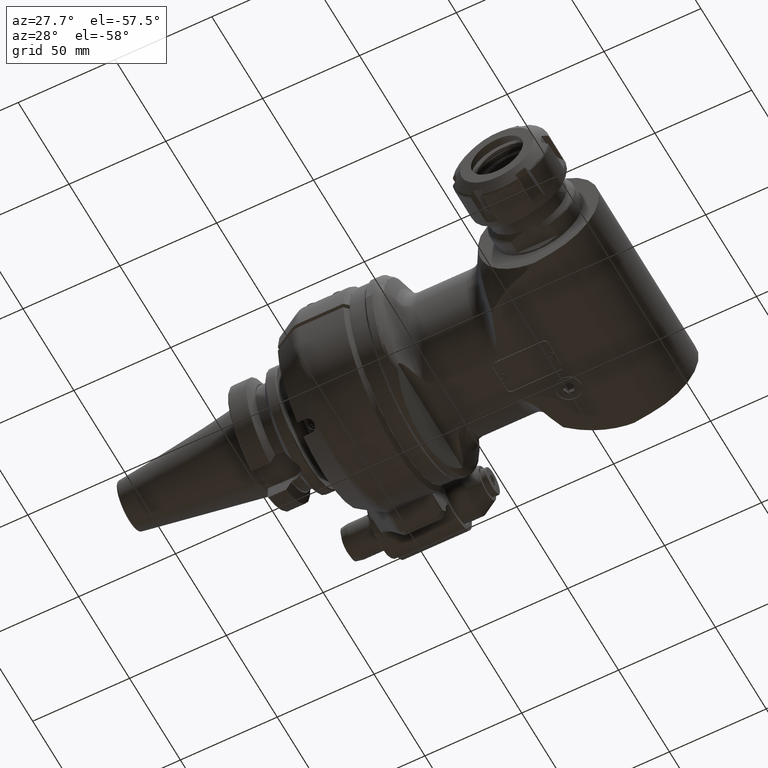
[diagram: clean part render]
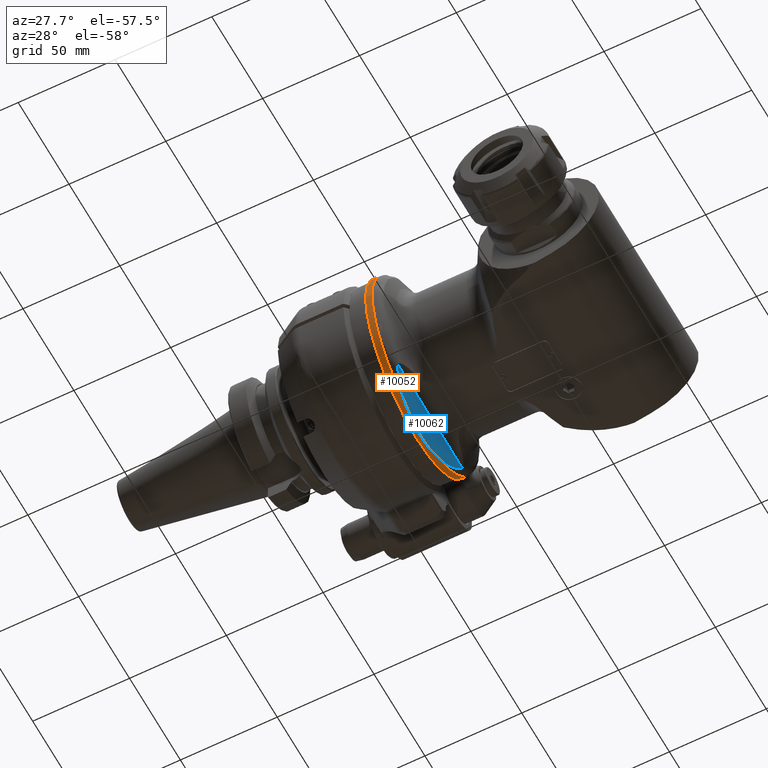
[diagram: same view with the hole feature highlighted: cylindrical wall and planar end face, labeled with their STEP entity ids]
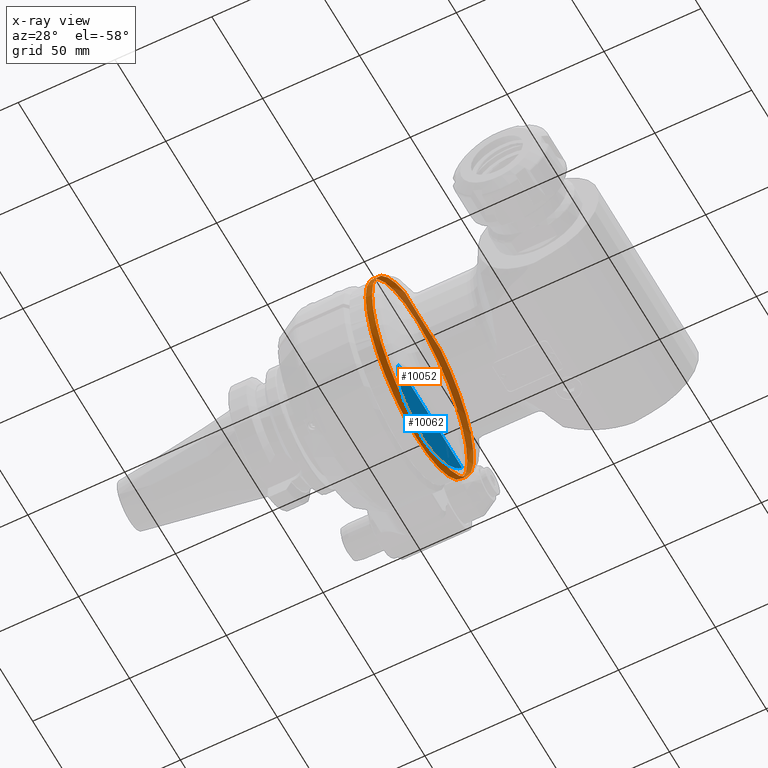
[diagram: x-ray of the same camera — body ghosted, the hole faces saturated]
A machine part, auxiliary view. The highlighted faces form one hole feature of diameter 100 mm: the cylindrical wall (entity #10052, orange) and its adjacent planar end face (entity #10062, blue) — they share a circular edge in the B-rep.
The next image is the same camera in x-ray (body ghosted, the hole faces saturated) — the bore reads through the body.
Wall:
#171=ELLIPSE('',#10689,53.2088886237962,50.);
#172=ELLIPSE('',#10695,53.2088886237962,50.);
#747=LINE('',#19281,#1506);
#1506=VECTOR('',#11784,50.);
#2232=CYLINDRICAL_SURFACE('',#10692,50.);
#2420=FACE_OUTER_BOUND('',#2974,.T.);
#2974=EDGE_LOOP('',(#6998,#6999,#7000,#7001,#7002,#7003,#7004,#7005,#7006));
#3567=CIRCLE('',#10686,50.);
#3568=CIRCLE('',#10687,50.);
#3569=CIRCLE('',#10691,50.);
#3570=CIRCLE('',#10693,50.);
#3571=CIRCLE('',#10694,50.);
#4071=VERTEX_POINT('',#19209);
#4072=VERTEX_POINT('',#19224);
#4073=VERTEX_POINT('',#19226);
#4074=VERTEX_POINT('',#19243);
#4075=VERTEX_POINT('',#19260);
#4076=VERTEX_POINT('',#19277);
#4077=VERTEX_POINT('',#19278);
#5243=EDGE_CURVE('',#4071,#4072,#3567,.T.);
#5244=EDGE_CURVE('',#4072,#4073,#3568,.T.);
#5247=EDGE_CURVE('',#4074,#4071,#171,.T.);
#5249=EDGE_CURVE('',#4075,#4074,#3569,.T.);
#5250=EDGE_CURVE('',#4076,#4077,#3570,.T.);
#5251=EDGE_CURVE('',#4077,#4076,#3571,.T.);
#5252=EDGE_CURVE('',#4077,#4072,#747,.T.);
#5253=EDGE_CURVE('',#4073,#4075,#172,.T.);
#6998=ORIENTED_EDGE('',*,*,#5250,.F.);
#6999=ORIENTED_EDGE('',*,*,#5251,.F.);
#7000=ORIENTED_EDGE('',*,*,#5252,.T.);
#7001=ORIENTED_EDGE('',*,*,#5243,.F.);
#7002=ORIENTED_EDGE('',*,*,#5247,.F.);
#7003=ORIENTED_EDGE('',*,*,#5249,.F.);
#7004=ORIENTED_EDGE('',*,*,#5253,.F.);
#7005=ORIENTED_EDGE('',*,*,#5244,.F.);
#7006=ORIENTED_EDGE('',*,*,#5252,.F.);
#10052=ADVANCED_FACE('',(#2420),#2232,.T.);
#10686=AXIS2_PLACEMENT_3D('',#19225,#11766,#11767);
#10687=AXIS2_PLACEMENT_3D('',#19227,#11768,#11769);
#10689=AXIS2_PLACEMENT_3D('',#19258,#11772,#11773);
#10691=AXIS2_PLACEMENT_3D('',#19275,#11776,#11777);
#10692=AXIS2_PLACEMENT_3D('',#19276,#11778,#11779);
#10693=AXIS2_PLACEMENT_3D('',#19279,#11780,#11781);
#10694=AXIS2_PLACEMENT_3D('',#19280,#11782,#11783);
#10695=AXIS2_PLACEMENT_3D('',#19282,#11785,#11786);
#11766=DIRECTION('center_axis',(1.,0.,0.));
#11767=DIRECTION('ref_axis',(0.,-1.,0.));
#11768=DIRECTION('center_axis',(1.,0.,0.));
#11769=DIRECTION('ref_axis',(0.,-1.,0.));
#11772=DIRECTION('center_axis',(0.939692620785897,0.,0.342020143325699));
#11773=DIRECTION('ref_axis',(0.342020143325699,0.,-0.939692620785897));
#11776=DIRECTION('center_axis',(1.,0.,0.));
#11777=DIRECTION('ref_axis',(0.,1.,0.));
#11778=DIRECTION('center_axis',(-1.,0.,0.));
#11779=DIRECTION('ref_axis',(0.,1.,0.));
#11780=DIRECTION('center_axis',(-1.,0.,0.));
#11781=DIRECTION('ref_axis',(0.,-1.,0.));
#11782=DIRECTION('center_axis',(-1.,0.,0.));
#11783=DIRECTION('ref_axis',(0.,-1.,0.));
#11784=DIRECTION('',(1.,0.,0.));
#11785=DIRECTION('center_axis',(0.939692620785897,0.,-0.342020143325699));
#11786=DIRECTION('ref_axis',(-0.342020143325699,0.,-0.939692620785897));
#19209=CARTESIAN_POINT('',(192.3777456357,-17.40492767463,46.87289720767));
#19224=CARTESIAN_POINT('',(192.377745635738,-50.,6.12323399573677E-15));
#19225=CARTESIAN_POINT('Origin',(192.3777456357,0.,0.));
#19226=CARTESIAN_POINT('',(192.3777456357,-17.40492767463,-46.87289720767));
#19227=CARTESIAN_POINT('Origin',(192.3777456357,0.,0.));
#19243=CARTESIAN_POINT('',(192.3777456357,17.40492767463,46.87289720767));
#19258=CARTESIAN_POINT('Origin',(209.438085013152,0.,0.));
#19260=CARTESIAN_POINT('',(192.3777456357,17.40492767463,-46.87289720767));
#19275=CARTESIAN_POINT('Origin',(192.3777456357,0.,0.));
#19276=CARTESIAN_POINT('Origin',(230.669348,0.,0.));
#19277=CARTESIAN_POINT('',(189.063097,50.,0.));
#19278=CARTESIAN_POINT('',(189.063097,-50.,6.12323399573677E-15));
#19279=CARTESIAN_POINT('Origin',(189.063097,0.,0.));
#19280=CARTESIAN_POINT('Origin',(189.063097,0.,0.));
#19281=CARTESIAN_POINT('',(230.669348,-50.,6.12323399573677E-15));
#19282=CARTESIAN_POINT('Origin',(209.438085013152,0.,0.));
End face:
#172=ELLIPSE('',#10695,53.2088886237962,50.);
#452=B_SPLINE_CURVE_WITH_KNOTS('',3,(#19228,#19229,#19230,#19231,#19232,
#19233,#19234,#19235,#19236,#19237,#19238,#19239,#19240,#19241),
 .UNSPECIFIED.,.F.,.F.,(4,2,2,2,2,2,4),(3.46326501541199,3.65777178500081,
4.02908760830632,4.40040343161182,4.73106063973784,5.06171784786385,5.17704959790373),
 .UNSPECIFIED.);
#454=B_SPLINE_CURVE_WITH_KNOTS('',3,(#19261,#19262,#19263,#19264,#19265,
#19266,#19267,#19268,#19269,#19270,#19271,#19272,#19273,#19274),
 .UNSPECIFIED.,.F.,.F.,(4,2,2,2,2,2,4),(8.52445448942661,8.63978623946649,
8.9704434475925,9.30110065571852,9.67241647902402,10.0437323023295,10.2382390719191),
 .UNSPECIFIED.);
#745=LINE('',#14646,#1504);
#1504=VECTOR('',#11688,63.06014172074);
#2430=FACE_OUTER_BOUND('',#2986,.T.);
#2986=EDGE_LOOP('',(#7043,#7044,#7045,#7046));
#4024=VERTEX_POINT('',#14632);
#4025=VERTEX_POINT('',#14645);
#4073=VERTEX_POINT('',#19226);
#4075=VERTEX_POINT('',#19260);
#5152=EDGE_CURVE('',#4024,#4025,#745,.T.);
#5245=EDGE_CURVE('',#4024,#4073,#452,.T.);
#5248=EDGE_CURVE('',#4075,#4025,#454,.T.);
#5253=EDGE_CURVE('',#4073,#4075,#172,.T.);
#7043=ORIENTED_EDGE('',*,*,#5245,.T.);
#7044=ORIENTED_EDGE('',*,*,#5253,.T.);
#7045=ORIENTED_EDGE('',*,*,#5248,.T.);
#7046=ORIENTED_EDGE('',*,*,#5152,.F.);
#9743=PLANE('',#10716);
#10062=ADVANCED_FACE('',(#2430),#9743,.F.);
#10695=AXIS2_PLACEMENT_3D('',#19282,#11785,#11786);
#10716=AXIS2_PLACEMENT_3D('',#19320,#11833,#11834);
#11688=DIRECTION('',(4.146513465157E-14,1.,1.291278378008E-13));
#11785=DIRECTION('center_axis',(0.939692620785897,0.,-0.342020143325699));
#11786=DIRECTION('ref_axis',(-0.342020143325699,0.,-0.939692620785897));
#11833=DIRECTION('center_axis',(-0.939692620785897,0.,0.342020143325699));
#11834=DIRECTION('ref_axis',(0.342020143325699,0.,0.939692620785897));
#14632=CARTESIAN_POINT('',(196.1051567178,-31.53007086037,-36.63191942671));
#14645=CARTESIAN_POINT('',(196.1051567178,31.53007086037,-36.6319194267));
#14646=CARTESIAN_POINT('',(196.1051567178,-31.53007086037,-36.63191942671));
#19226=CARTESIAN_POINT('',(192.3777456357,-17.40492767463,-46.87289720767));
#19228=CARTESIAN_POINT('Ctrl Pts',(196.105156717802,-31.5300708603091,-36.631919426678));
#19229=CARTESIAN_POINT('Ctrl Pts',(195.891535296273,-31.2144345402221,-37.2188394586415));
#19230=CARTESIAN_POINT('Ctrl Pts',(195.680661636611,-30.8101966263475,-37.7982100769191));
#19231=CARTESIAN_POINT('Ctrl Pts',(195.162728215626,-29.6858895034814,-39.221220455856));
#19232=CARTESIAN_POINT('Ctrl Pts',(194.823715761596,-28.762998259754,-40.1526495182193));
#19233=CARTESIAN_POINT('Ctrl Pts',(194.201366183599,-26.7614724252077,-41.8625409307726));
#19234=CARTESIAN_POINT('Ctrl Pts',(193.918058123146,-25.6827605825767,-42.640923429617));
#19235=CARTESIAN_POINT('Ctrl Pts',(193.46656037435,-23.7507826391231,-43.8814032993668));
#19236=CARTESIAN_POINT('Ctrl Pts',(193.250349658616,-22.7176844987486,-44.4754373586897));
#19237=CARTESIAN_POINT('Ctrl Pts',(192.856173361094,-20.590220041838,-45.5584278354153));
#19238=CARTESIAN_POINT('Ctrl Pts',(192.678012482352,-19.4961631036191,-46.0479208267895));
#19239=CARTESIAN_POINT('Ctrl Pts',(192.477751510717,-18.1296968241042,-46.5981333243543));
#19240=CARTESIAN_POINT('Ctrl Pts',(192.427101632847,-17.7701216774767,-46.737292720101));
#19241=CARTESIAN_POINT('Ctrl Pts',(192.377745635738,-17.4049276746258,-46.8728972076726));
#19260=CARTESIAN_POINT('',(192.3777456357,17.40492767463,-46.87289720767));
#19261=CARTESIAN_POINT('Ctrl Pts',(192.377745635738,17.4049276746258,-46.8728972076726));
#19262=CARTESIAN_POINT('Ctrl Pts',(192.427101632847,17.7701216774767,-46.737292720101));
#19263=CARTESIAN_POINT('Ctrl Pts',(192.477751510717,18.1296968241042,-46.5981333243543));
#19264=CARTESIAN_POINT('Ctrl Pts',(192.678012482352,19.4961631036191,-46.0479208267895));
#19265=CARTESIAN_POINT('Ctrl Pts',(192.856173361094,20.590220041838,-45.5584278354153));
#19266=CARTESIAN_POINT('Ctrl Pts',(193.250349658616,22.7176844987486,-44.4754373586897));
#19267=CARTESIAN_POINT('Ctrl Pts',(193.46656037435,23.7507826391231,-43.8814032993668));
#19268=CARTESIAN_POINT('Ctrl Pts',(193.918058123146,25.6827605825767,-42.640923429617));
#19269=CARTESIAN_POINT('Ctrl Pts',(194.201366183599,26.7614724252077,-41.8625409307726));
#19270=CARTESIAN_POINT('Ctrl Pts',(194.823715761596,28.762998259754,-40.1526495182193));
#19271=CARTESIAN_POINT('Ctrl Pts',(195.162728215626,29.6858895034814,-39.221220455856));
#19272=CARTESIAN_POINT('Ctrl Pts',(195.680661636612,30.810196626349,-37.7982100769172));
#19273=CARTESIAN_POINT('Ctrl Pts',(195.891535296275,31.2144345402253,-37.2188394586368));
#19274=CARTESIAN_POINT('Ctrl Pts',(196.105156717805,31.5300708603129,-36.631919426671));
#19282=CARTESIAN_POINT('Origin',(209.438085013152,0.,0.));
#19320=CARTESIAN_POINT('Origin',(197.0630970481,0.,-34.));